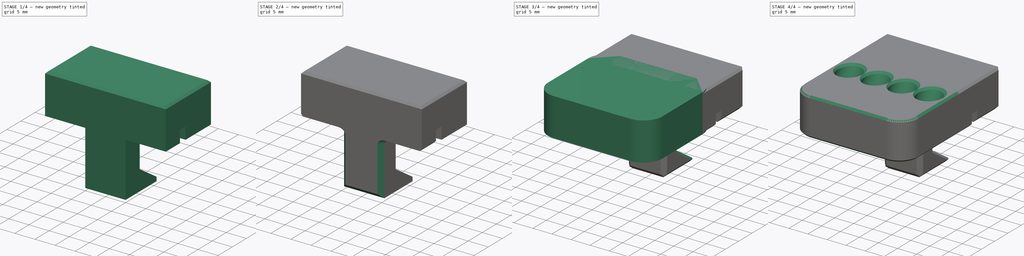
[diagram: build sequence overview — one tinted view per stage of 4, left to right]
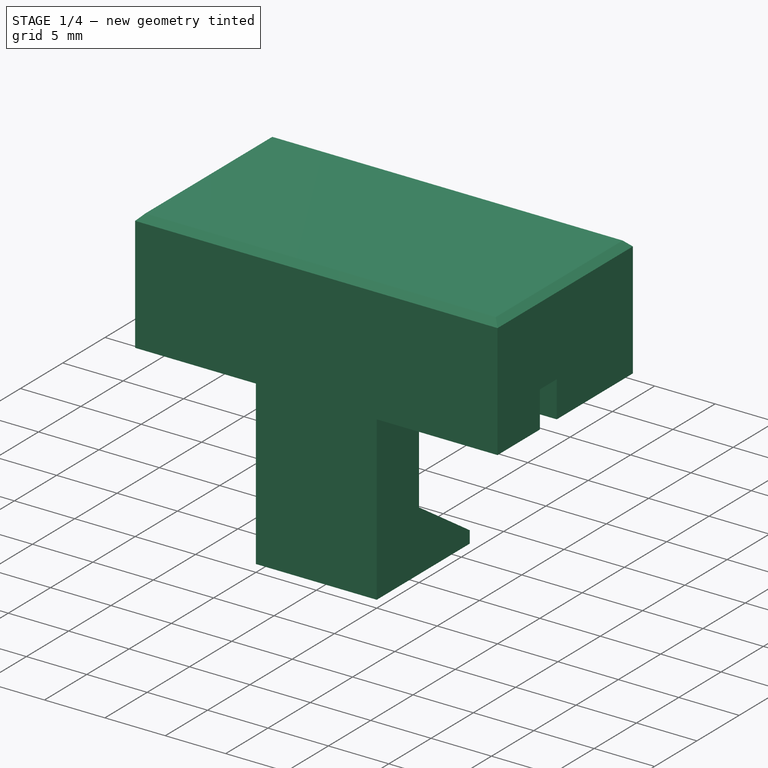
[diagram: stage 1 of 4 — iso view after this stage's code; geometry added in this stage tinted green]
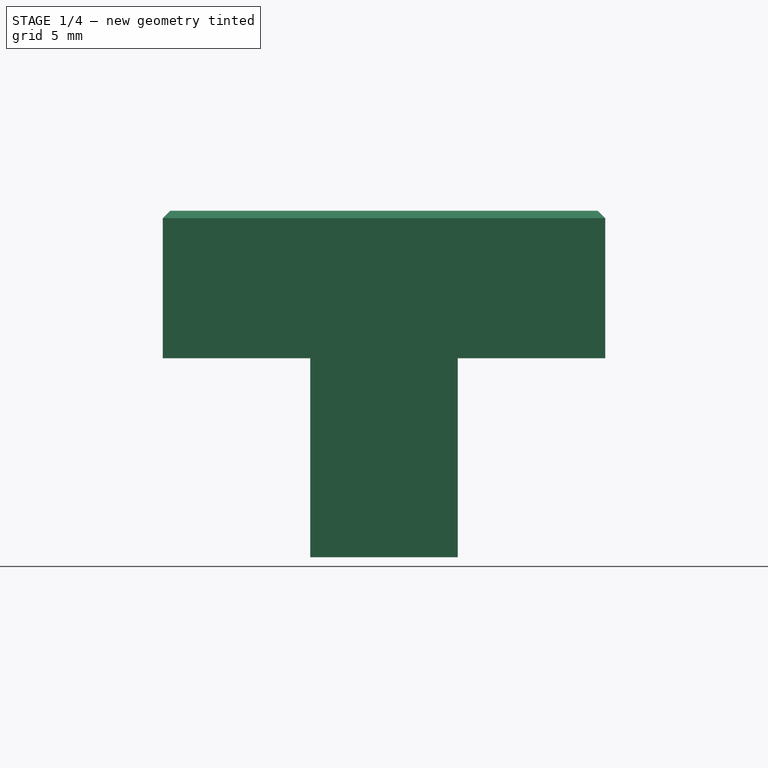
[diagram: stage 1 of 4 — front view after this stage's code; geometry added in this stage tinted green]
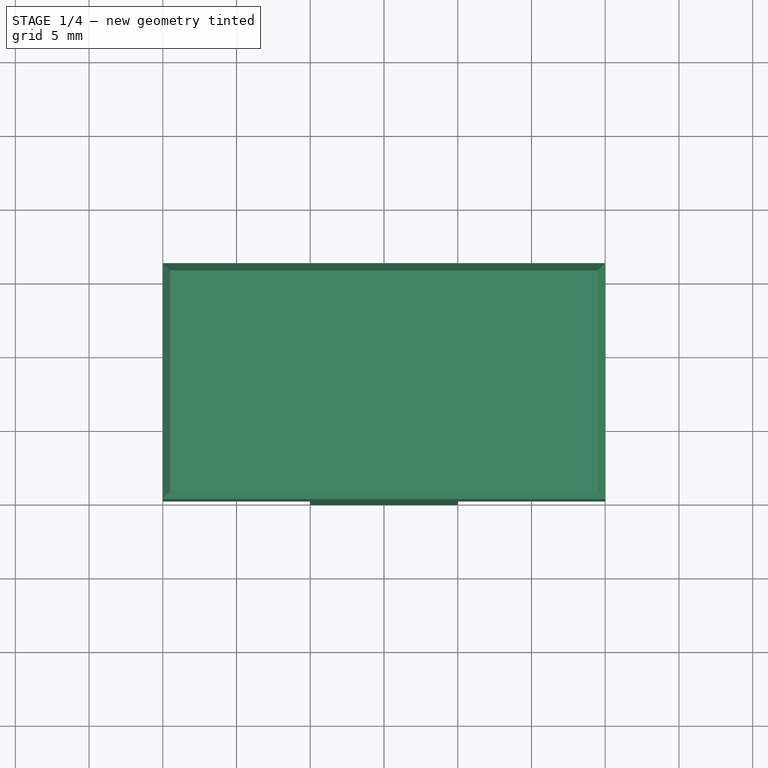
[diagram: stage 1 of 4 — top view after this stage's code; geometry added in this stage tinted green]
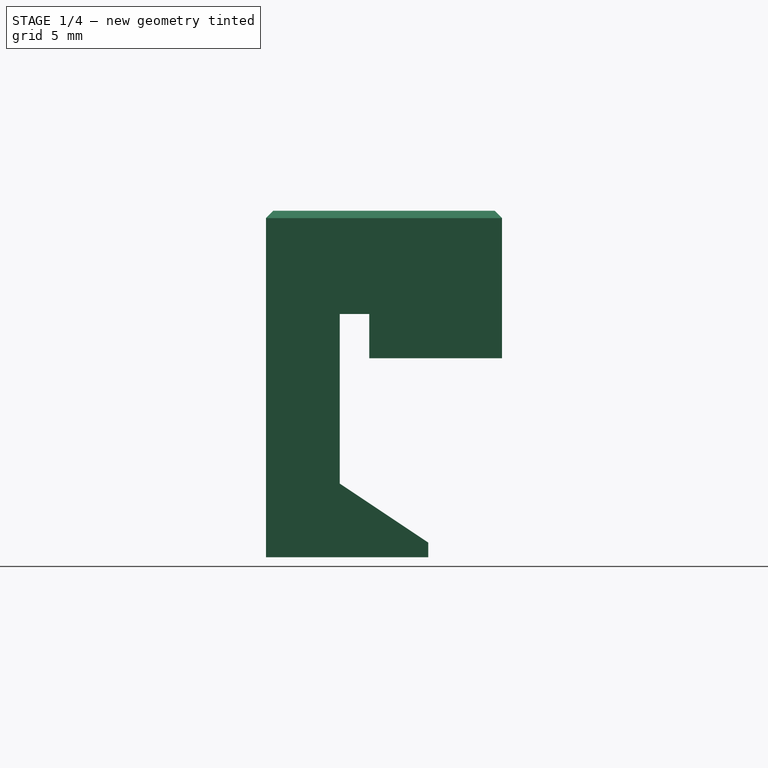
[diagram: stage 1 of 4 — right view after this stage's code; geometry added in this stage tinted green]
FCSTD DOCUMENT  (FreeCAD 0.20R)
Label: tubes_holder
License: All rights reserved
LicenseURL: http://en.wikipedia.org/wiki/All_rights_reserved
objects: PartDesign::Chamfer×7, Sketcher::SketchObject×4, PartDesign::Pad×3, PartDesign::Plane×2, PartDesign::Body×2, PartDesign::Fillet×1, PartDesign::Pocket×1, Part::FeaturePython×1, Part::Feature×1
note: 34 computed .brp shape members not serialized (recipe doc carries the construction recipe); baked Part::Feature solids carry a one-line shape summary decoded from their .brp

FEATURE [Sketcher::SketchObject] Sketch003
  FullyConstrained = true
  MapMode = 5
  Placement = pos=(0,0,0) rot=(0.57735,0.57735,0.57735;2.0944rad)
  Support = -> [YZ_Plane001]
  sketch-geometry (10):
    g0: LineSegment StartX=2 StartY=-5 StartZ=0 EndX=11 EndY=-5 EndZ=0
    g1: LineSegment StartX=11 StartY=-5 StartZ=0 EndX=11 EndY=5 EndZ=0
    g2: LineSegment StartX=2 StartY=-2 StartZ=0 EndX=2 EndY=-5 EndZ=0
    g3: LineSegment StartX=0 StartY=-2 StartZ=0 EndX=2 EndY=-2 EndZ=0
    g4: LineSegment StartX=0 StartY=-2 StartZ=0 EndX=0 EndY=-13.5 EndZ=0
    g5: LineSegment StartX=6 StartY=-18.5 StartZ=0 EndX=6 EndY=-17.5 EndZ=0
    g6: LineSegment StartX=-5 StartY=-18.5 StartZ=0 EndX=6 EndY=-18.5 EndZ=0
    g7: LineSegment StartX=-5 StartY=5 StartZ=0 EndX=11 EndY=5 EndZ=0
    g8: LineSegment StartX=-5 StartY=5 StartZ=0 EndX=-5 EndY=-18.5 EndZ=0
    g9: LineSegment StartX=6 StartY=-17.5 StartZ=0 EndX=0 EndY=-13.5 EndZ=0
  constraints (30):
    c: Coincident(g0,g1)
    c: Coincident(g2,g0)
    c: Horizontal(g0)
    c: Vertical(g1)
    c: Vertical(g2)
    c: Horizontal(g3)
    c: Vertical(g4)
    c: Coincident(g2,g3)
    c: DistanceX(g3,g2) = 2
    c: Coincident(g3,g4)
    c: DistanceY(g2,g2) = 3
    c: Vertical(g5)
    c: DistanceX(g3,g5) = 6
    c: DistanceY(g4,g3) = 11.5
    c: Coincident(g6,g5)
    c: Horizontal(g6)
    c: DistanceY(g1,g1) = 10
    c: Coincident(g7,g1)
    c: Horizontal(g7)
    c: DistanceY(g5,g5) = 1
    c: DistanceX(g6,g4) = 5
    c: DistanceX(g3,g0) = 11
    c: Coincident(g8,g7)
    c: Coincident(g8,g6)
    c: Vertical(g8)
    c: DistanceY(g-1,g7) = 5
    c: DistanceX(g-1,g3) = 0
    c: DistanceY(g6,g4) = 5
    c: Coincident(g9,g5)
    c: Coincident(g9,g4)
FEATURE [Sketcher::SketchObject] Sketch004
  FullyConstrained = false
  MapMode = 5
  Placement = pos=(0,0,0) rot=(0.57735,0.57735,0.57735;2.0944rad)
  sketch-geometry (9):
    g0: LineSegment StartX=2 StartY=-5 StartZ=0 EndX=11 EndY=-5 EndZ=0
    g1: LineSegment StartX=11 StartY=-5 StartZ=0 EndX=11 EndY=5 EndZ=0
    g2: LineSegment StartX=2 StartY=-2 StartZ=0 EndX=2 EndY=-5 EndZ=0
    g3: LineSegment StartX=0 StartY=-2 StartZ=0 EndX=2 EndY=-2 EndZ=0
    g4: LineSegment StartX=-5 StartY=5 StartZ=0 EndX=11 EndY=5 EndZ=0
    g5: LineSegment StartX=-5 StartY=5 StartZ=0 EndX=-5 EndY=-2 EndZ=0
    g6: LineSegment StartX=-5 StartY=-2 StartZ=0 EndX=-5 EndY=-5 EndZ=0
    g7: LineSegment StartX=-5 StartY=-5 StartZ=0 EndX=0 EndY=-5 EndZ=0
    g8: LineSegment StartX=0 StartY=-5 StartZ=0 EndX=0 EndY=-2 EndZ=0
  constraints (26):
    c: Coincident(g0,g1)
    c: Coincident(g2,g0)
    c: Horizontal(g0)
    c: Vertical(g1)
    c: Vertical(g2)
    c: Horizontal(g3)
    c: Coincident(g2,g3)
    c: DistanceX(g3,g2) = 2
    c: DistanceY(g2,g2) = 3
    c: DistanceY(g1,g1) = 10
    c: Coincident(g4,g1)
    c: Horizontal(g4)
    c: DistanceX(g3,g0) = 11
    c: DistanceY(g-1,g4) = 5
    c: DistanceX(g-1,g3) = 0
    c: Coincident(g5,g4)
    c: DistanceX(g4) = -5
    c: Perpendicular(g4,g5)
    c: Coincident(g6,g5)
    c: Coincident(g7,g6)
    c: Coincident(g8,g7)
    c: Coincident(g8,g3)
    c: Perpendicular(g8,g3)
    c: Perpendicular(g8,g7)
    c: Perpendicular(g7,g6)
    c: DistanceY(g6,g-1) = 5
FEATURE [PartDesign::Pad] Pad001
  Direction = (1,-2e-16,3e-16)
  Length = 10
  Length2 = 10
  Midplane = true
  Placement = pos=(0,0,0) rot=(0.57735,0.57735,0.57735;2.0944rad)
  Profile = -> Sketch003
  ReferenceAxis = -> Sketch003 [N_Axis]
  Type = 0
FEATURE [PartDesign::Pad] Pad002
  BaseFeature = -> Pad001
  Direction = (1,0,0)
  Length = 30
  Length2 = 10
  Midplane = true
  Placement = pos=(0,0,0) rot=(0.57735,0.57735,0.57735;2.0944rad)
  Profile = -> Sketch004
  ReferenceAxis = -> Sketch004 [N_Axis]
  Type = 0
FEATURE [PartDesign::Chamfer] Chamfer001
  Angle = 45
  Base = -> Pad002 [Face18,Face9,Face19]
  BaseFeature = -> Pad002
  ChamferType = 0
  FlipDirection = false
  Placement = pos=(0,0,0) rot=(0.57735,0.57735,0.57735;2.0944rad)
  Size = 0.5
  Size2 = 1
  SupportTransform = false
  UseAllEdges = false
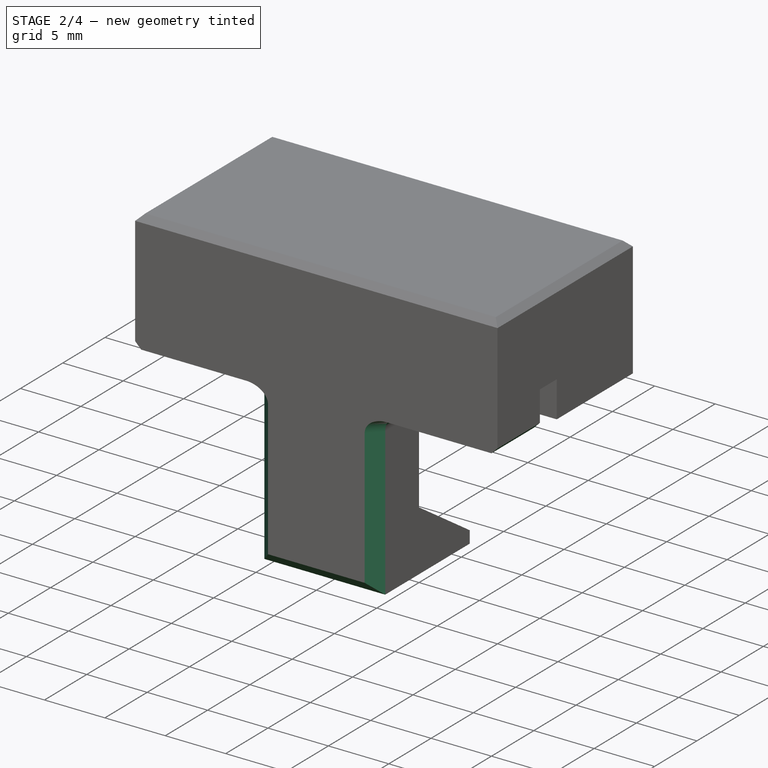
[diagram: stage 2 of 4 — iso view after this stage's code; geometry added in this stage tinted green]
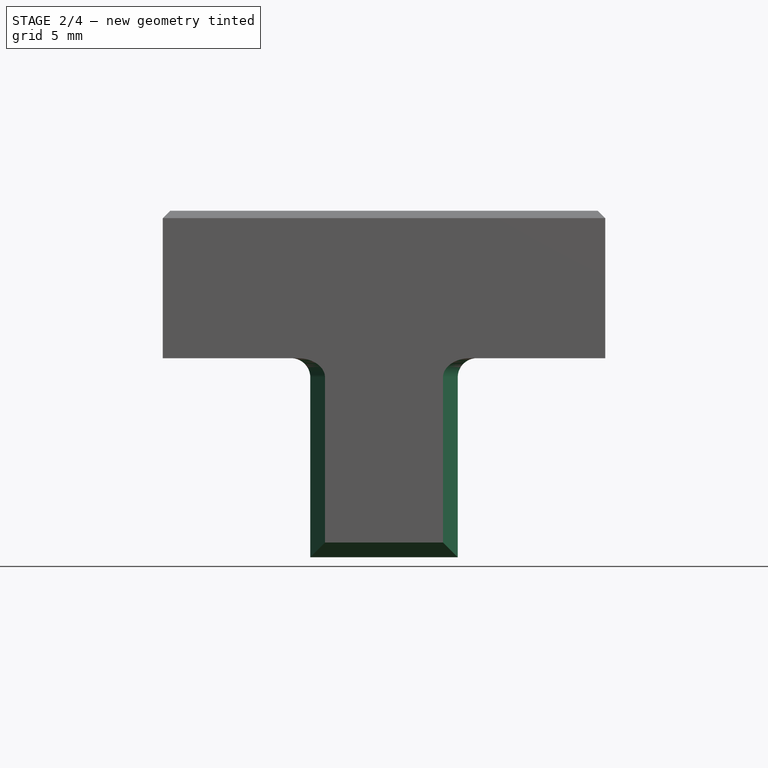
[diagram: stage 2 of 4 — front view after this stage's code; geometry added in this stage tinted green]
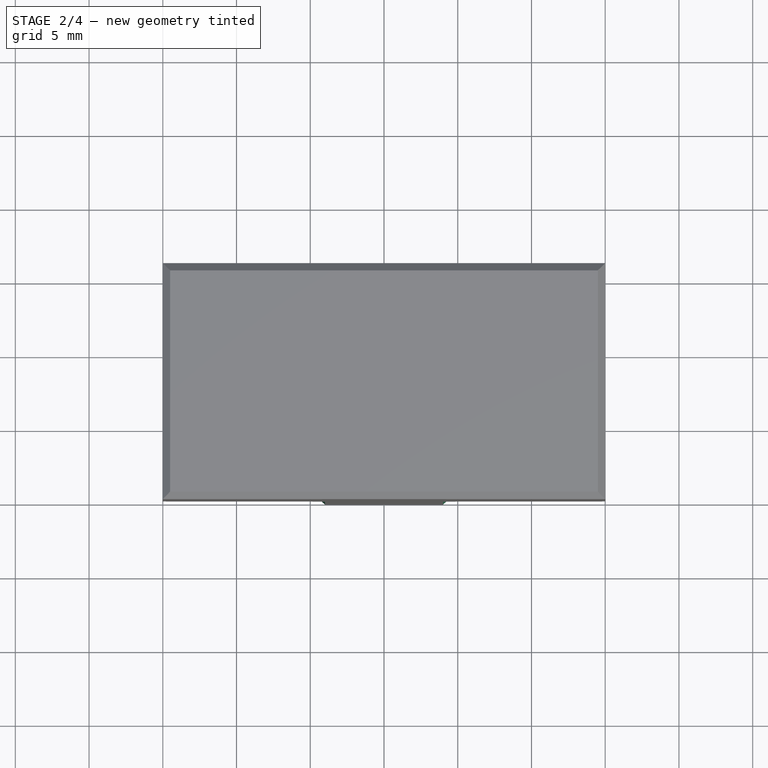
[diagram: stage 2 of 4 — top view after this stage's code; geometry added in this stage tinted green]
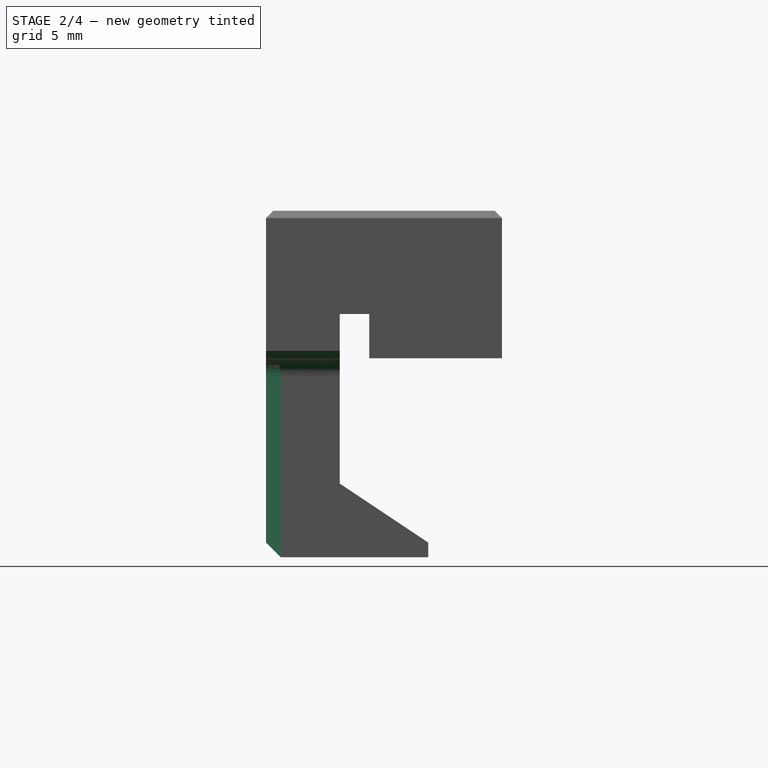
[diagram: stage 2 of 4 — right view after this stage's code; geometry added in this stage tinted green]
FEATURE [PartDesign::Chamfer] Chamfer002
  Angle = 45
  Base = -> Chamfer001 [Edge89,Edge90,Edge83]
  BaseFeature = -> Chamfer001
  ChamferType = 0
  FlipDirection = false
  Placement = pos=(0,0,0) rot=(0.57735,0.57735,0.57735;2.0944rad)
  Size = 1
  Size2 = 1
  SupportTransform = false
  UseAllEdges = false
FEATURE [PartDesign::Fillet] Fillet
  Base = -> Chamfer002 [Edge1,Edge6,Edge43,Edge44]
  BaseFeature = -> Chamfer002
  Placement = pos=(0,0,0) rot=(0.57735,0.57735,0.57735;2.0944rad)
  Radius = 1.3
  SupportTransform = false
  UseAllEdges = false
FEATURE [PartDesign::Chamfer] Chamfer003
  Angle = 45
  Base = -> Fillet [Edge70,Edge2]
  BaseFeature = -> Fillet
  ChamferType = 0
  FlipDirection = false
  Placement = pos=(0,0,0) rot=(0.57735,0.57735,0.57735;2.0944rad)
  Size = 0.5
  Size2 = 1
  SupportTransform = false
  UseAllEdges = false
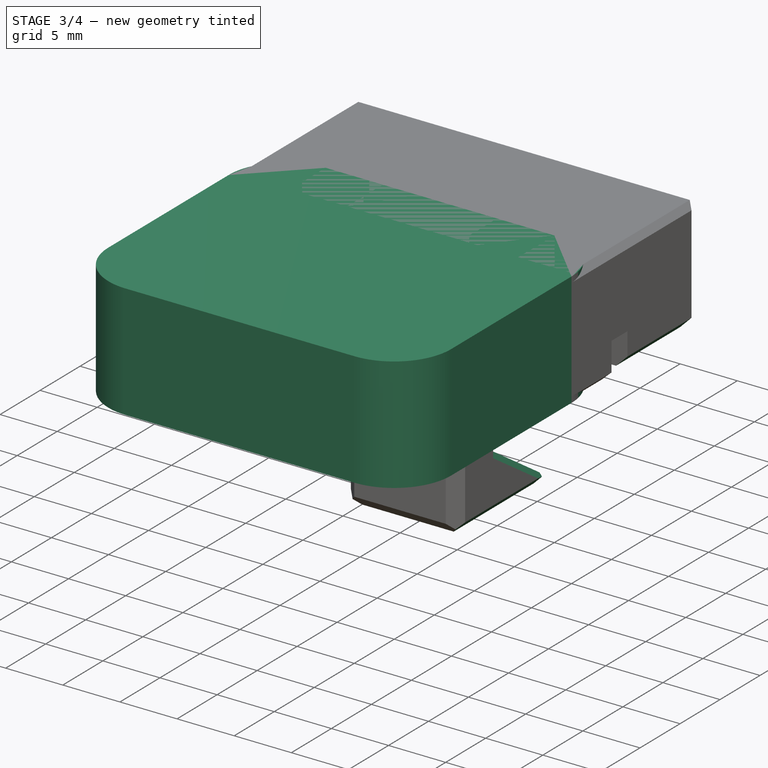
[diagram: stage 3 of 4 — iso view after this stage's code; geometry added in this stage tinted green]
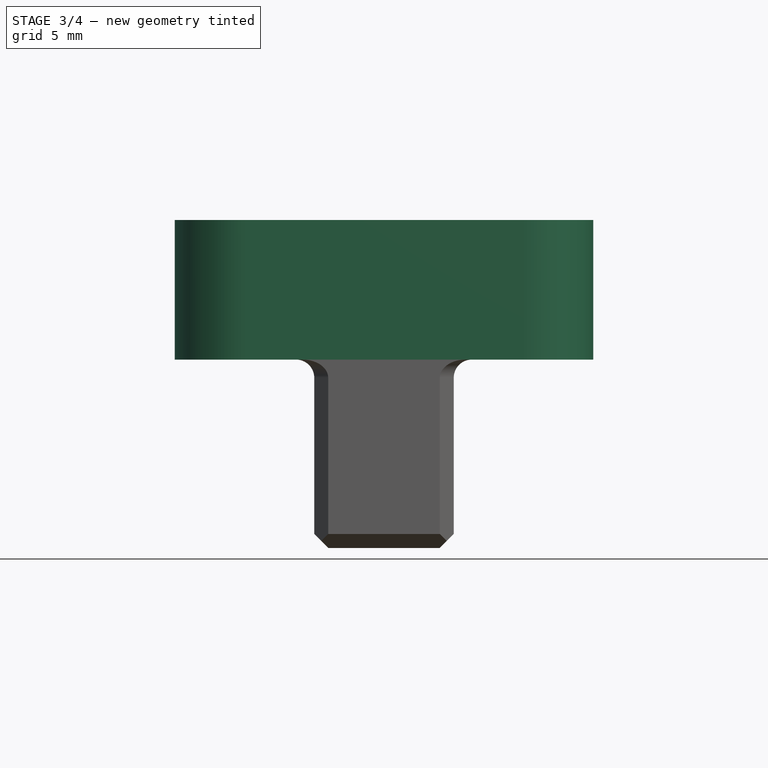
[diagram: stage 3 of 4 — front view after this stage's code; geometry added in this stage tinted green]
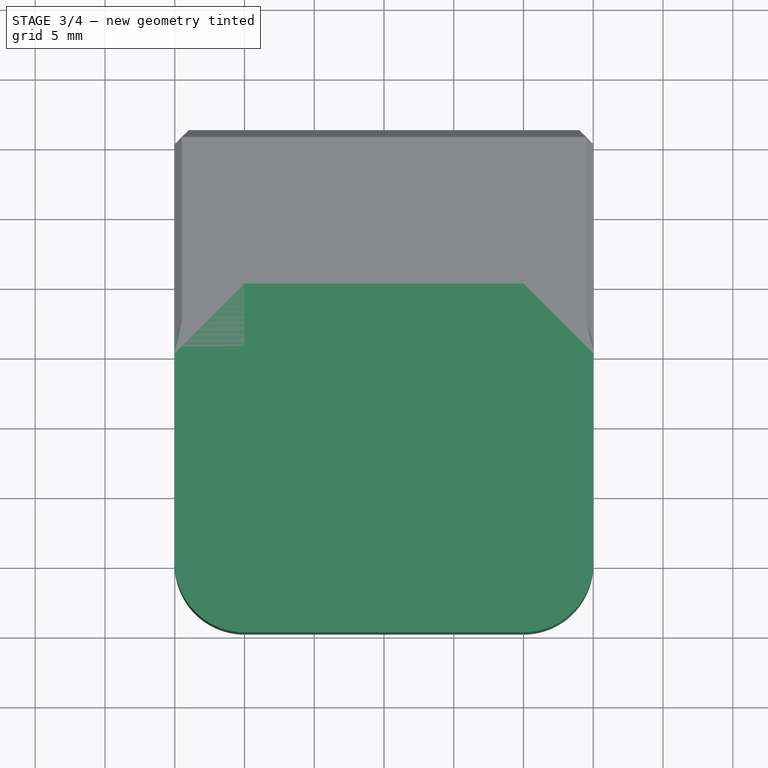
[diagram: stage 3 of 4 — top view after this stage's code; geometry added in this stage tinted green]
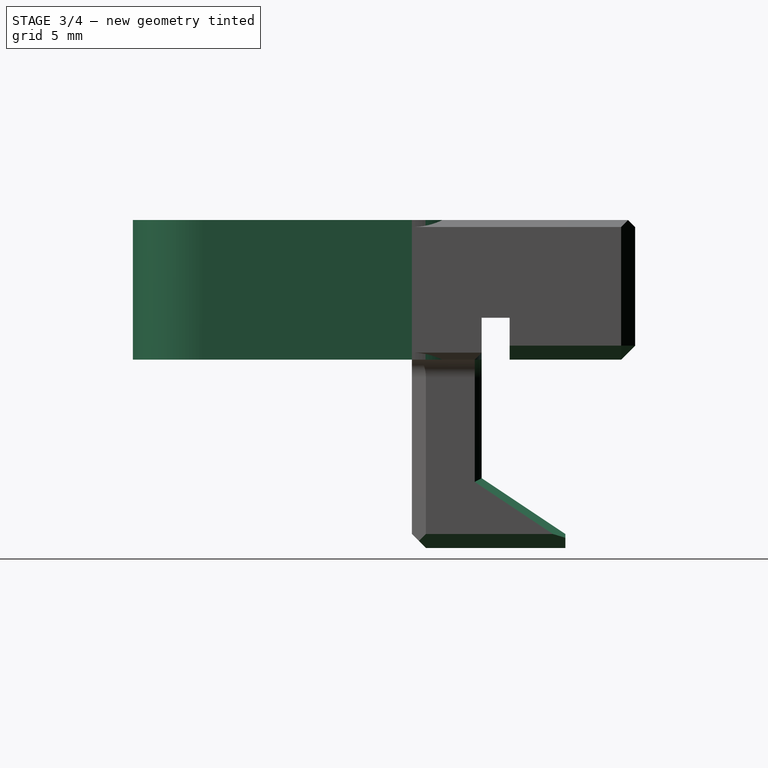
[diagram: stage 3 of 4 — right view after this stage's code; geometry added in this stage tinted green]
FEATURE [Sketcher::SketchObject] Sketch001
  FullyConstrained = true
  MapMode = 5
  Support = -> [XY_Plane]
  sketch-geometry (10):
    g0: ArcOfCircle CenterX=-10 CenterY=-5 CenterZ=0 NormalX=0 NormalY=0 NormalZ=1 AngleXU=0 Radius=5 StartAngle=1.5708 EndAngle=3.14159
    g1: LineSegment StartX=-10 StartY=-1.8e-15 StartZ=0 EndX=10 EndY=-1.8e-15 EndZ=0
    g2: ArcOfCircle CenterX=10 CenterY=-5 CenterZ=0 NormalX=0 NormalY=0 NormalZ=1 AngleXU=0 Radius=5 StartAngle=2e-16 EndAngle=1.5708
    g3: LineSegment StartX=15 StartY=-5 StartZ=0 EndX=15 EndY=-20 EndZ=0
    g4: ArcOfCircle CenterX=10 CenterY=-20 CenterZ=0 NormalX=0 NormalY=0 NormalZ=1 AngleXU=0 Radius=5 StartAngle=4.71239 EndAngle=6.28319
    g5: LineSegment StartX=10 StartY=-25 StartZ=0 EndX=-10 EndY=-25 EndZ=0
    g6: ArcOfCircle CenterX=-10 CenterY=-20 CenterZ=0 NormalX=0 NormalY=0 NormalZ=1 AngleXU=0 Radius=5 StartAngle=3.14159 EndAngle=4.71239
    g7: LineSegment StartX=-15 StartY=-20 StartZ=0 EndX=-15 EndY=-5 EndZ=0
    g8: GeomPoint X=-15 Y=0 Z=0
    g9: GeomPoint X=15 Y=-25 Z=0
  constraints (23):
    c: Tangent(g0,g1) = 1.5708
    c: Tangent(g1,g2) = 1.5708
    c: Tangent(g2,g3) = 1.5708
    c: Tangent(g3,g4) = 1.5708
    c: Tangent(g4,g5) = 1.5708
    c: Tangent(g5,g6) = 1.5708
    c: Tangent(g6,g7) = 1.5708
    c: Tangent(g7,g0) = 1.5708
    c: Horizontal(g1)
    c: Horizontal(g5)
    c: Vertical(g3)
    c: Vertical(g7)
    c: Equal(g0,g2)
    c: Equal(g2,g4)
    c: Equal(g4,g6)
    c: PointOnObject(g8,g1)
    c: PointOnObject(g8,g7)
    c: PointOnObject(g9,g3)
    c: PointOnObject(g9,g5)
    c: Symmetric(g0,g1,g-1)
    c: DistanceX(g0,g-1) = 15
    c: Radius(g6) = 5
    c: DistanceY(g4,g1) = 25
FEATURE [PartDesign::Pad] Pad
  Direction = (0,0,1)
  Length = 10
  Length2 = 10
  Midplane = true
  Profile = -> Sketch001
  ReferenceAxis = -> Sketch001 [N_Axis]
  Type = 0
FEATURE [PartDesign::Body] Body
  Group = -> [Sketch001,Pad,DatumPlane001,Sketch,Pocket,Chamfer]
  Origin = -> Origin
  Tip = -> Chamfer
FEATURE [PartDesign::Plane] DatumPlane
  Length = 60
  MapMode = 2
  ResizeMode = 0
  Support = -> [Body]
  Width = 60
FEATURE [PartDesign::Chamfer] Chamfer004
  Angle = 45
  Base = -> Chamfer003 [Edge96,Edge115,Edge103,Edge70,Edge31,Edge98,Edge33]
  BaseFeature = -> Chamfer003
  ChamferType = 0
  FlipDirection = false
  Placement = pos=(0,0,0) rot=(0.57735,0.57735,0.57735;2.0944rad)
  Size = 1
  Size2 = 1
  SupportTransform = false
  UseAllEdges = false
FEATURE [PartDesign::Chamfer] Chamfer005
  Angle = 45
  Base = -> Chamfer004 [Edge117,Edge109]
  BaseFeature = -> Chamfer004
  ChamferType = 0
  FlipDirection = false
  Placement = pos=(0,0,0) rot=(0.57735,0.57735,0.57735;2.0944rad)
  Size = 1
  Size2 = 1
  SupportTransform = false
  UseAllEdges = false
FEATURE [PartDesign::Chamfer] Chamfer006
  Angle = 45
  Base = -> Chamfer005 [Edge9,Edge32,Edge8,Edge31]
  BaseFeature = -> Chamfer005
  ChamferType = 0
  FlipDirection = false
  Placement = pos=(0,0,0) rot=(0.57735,0.57735,0.57735;2.0944rad)
  Size = 0.5
  Size2 = 1
  SupportTransform = false
  UseAllEdges = false
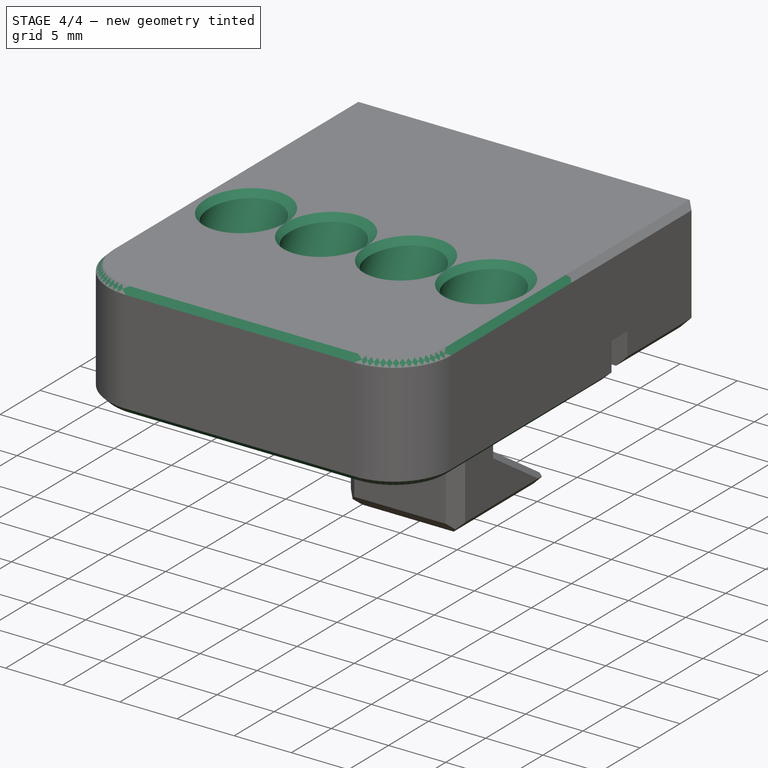
[diagram: stage 4 of 4 — iso view after this stage's code; geometry added in this stage tinted green]
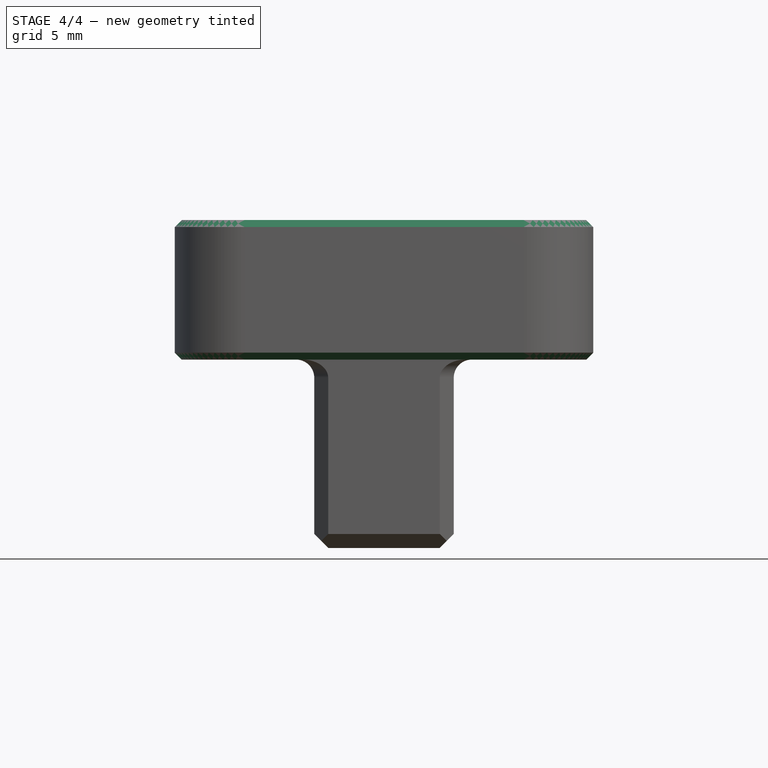
[diagram: stage 4 of 4 — front view after this stage's code; geometry added in this stage tinted green]
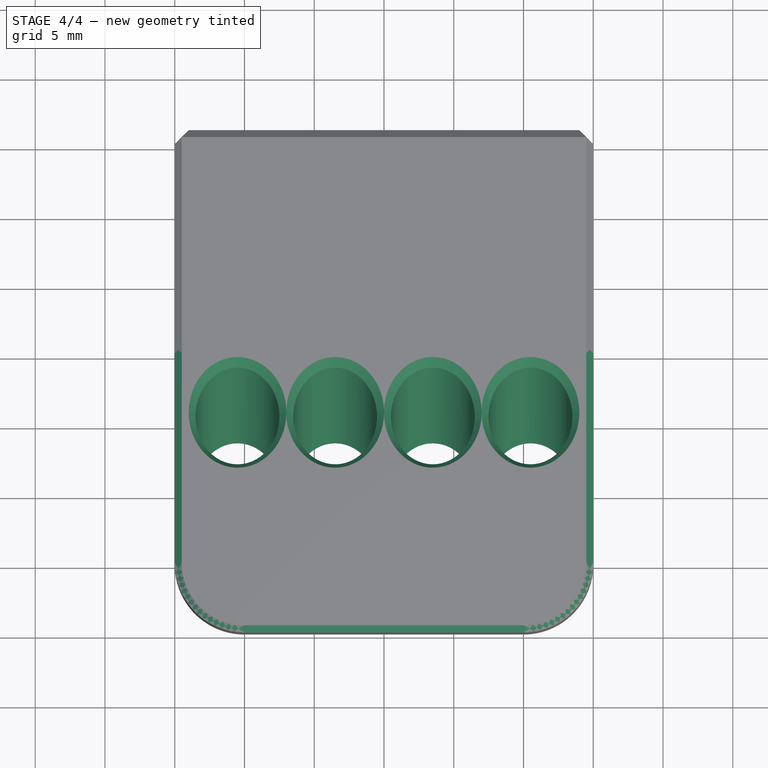
[diagram: stage 4 of 4 — top view after this stage's code; geometry added in this stage tinted green]
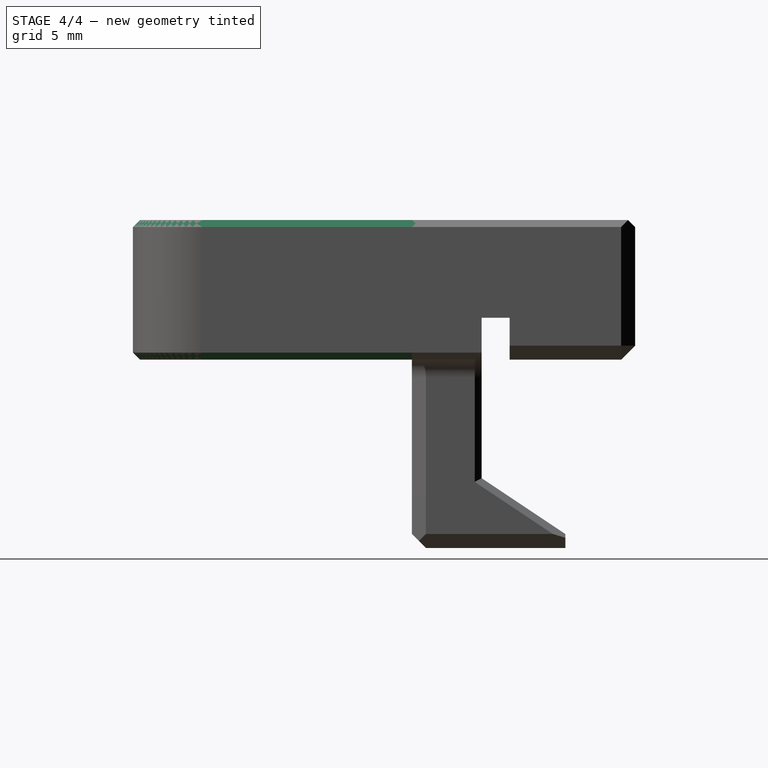
[diagram: stage 4 of 4 — right view after this stage's code; geometry added in this stage tinted green]
FEATURE [PartDesign::Plane] DatumPlane001
  AttachmentOffset = pos=(0,0,0) rot=(-1,0,0;0.523599rad)
  Length = 61.6877
  MapMode = 5
  Placement = pos=(0,0,5) rot=(-1,0,0;0.523599rad)
  ResizeMode = 0
  Support = -> [Pad]
  Width = 79.989
FEATURE [Sketcher::SketchObject] Sketch
  FullyConstrained = true
  MapMode = 5
  Placement = pos=(0,0,5) rot=(-1,0,0;0.523599rad)
  Support = -> [DatumPlane001]
  sketch-geometry (5):
    g0: Circle CenterX=-3.5 CenterY=-8 CenterZ=0 NormalX=0 NormalY=0 NormalZ=1 AngleXU=0 Radius=3
    g1: Circle CenterX=3.5 CenterY=-8 CenterZ=0 NormalX=0 NormalY=0 NormalZ=1 AngleXU=0 Radius=3
    g2: GeomPoint X=0 Y=-8 Z=0
    g3: Circle CenterX=-10.5 CenterY=-8 CenterZ=0 NormalX=0 NormalY=0 NormalZ=1 AngleXU=0 Radius=3
    g4: Circle CenterX=10.5 CenterY=-8 CenterZ=0 NormalX=0 NormalY=0 NormalZ=1 AngleXU=0 Radius=3
  constraints (13):
    c: Diameter(g0) = 6
    c: Equal(g0,g1) = 5.3
    c: DistanceY(g2,g-1) = 8
    c: DistanceX(g2) = 0
    c: DistanceY(g0,g2) = 0
    c: DistanceX(g0,g1) = 7
    c: Equal(g0,g3) = 5.3
    c: DistanceY(g0,g3) = 0
    c: DistanceX(g1,g4) = 7
    c: DistanceY(g1,g4) = 0
    c: Symmetric(g0,g1,g2)
    c: DistanceX(g3,g0) = 7
    c: Diameter(g4) = 6
FEATURE [PartDesign::Pocket] Pocket
  BaseFeature = -> Pad
  Direction = (0,-0.5,-0.866025)
  Length = 5
  Length2 = 5
  Midplane = true
  Profile = -> Sketch
  ReferenceAxis = -> Sketch [N_Axis]
  Type = 1
FEATURE [PartDesign::Chamfer] Chamfer
  Angle = 45
  Base = -> Pocket [Face5,Face4]
  BaseFeature = -> Pocket
  ChamferType = 0
  FlipDirection = false
  Size = 0.5
  Size2 = 1
  SupportTransform = false
  UseAllEdges = false
FEATURE [PartDesign::Body] Body001
  Group = -> [Sketch003,Sketch004,Pad001,Pad002,Chamfer001,Chamfer002,Fillet,Chamfer003,DatumPlane,Chamfer004,Chamfer005,Chamfer006]
  Origin = -> Origin001
  Tip = -> Chamfer006
FEATURE [Part::FeaturePython] Embed  # WARN: FeaturePython — macro-defined, semantics opaque (R4)
  Base = -> Body
  Tolerance = 0
  Tool = -> Body001
FEATURE [Part::Feature] Embed_solid  label="Embed (Solid)"
  shape: bbox 30 x 36 x 26.08 mm, 97 faces (baked)
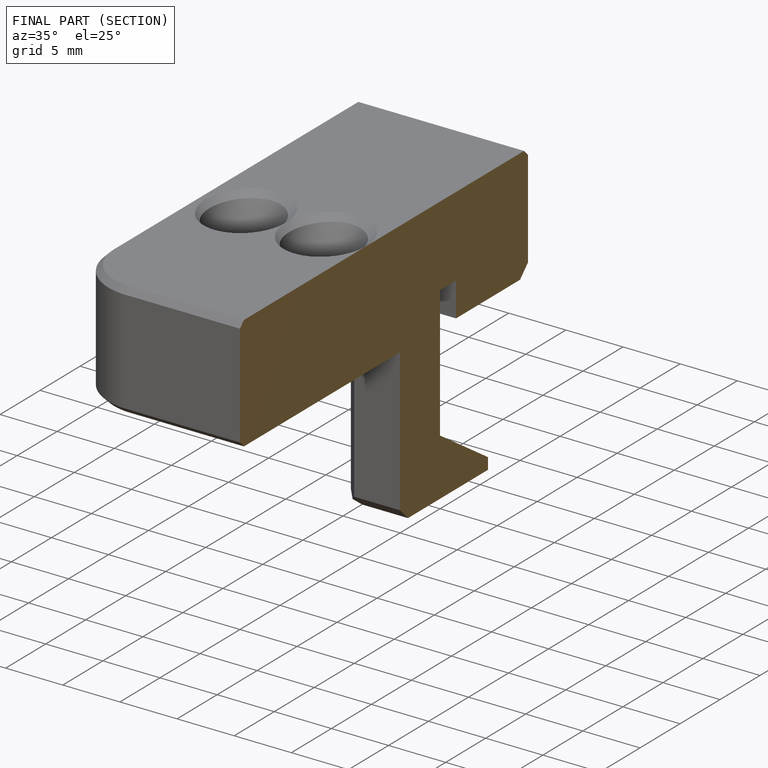
[diagram: finished part — half-section view (interior)]
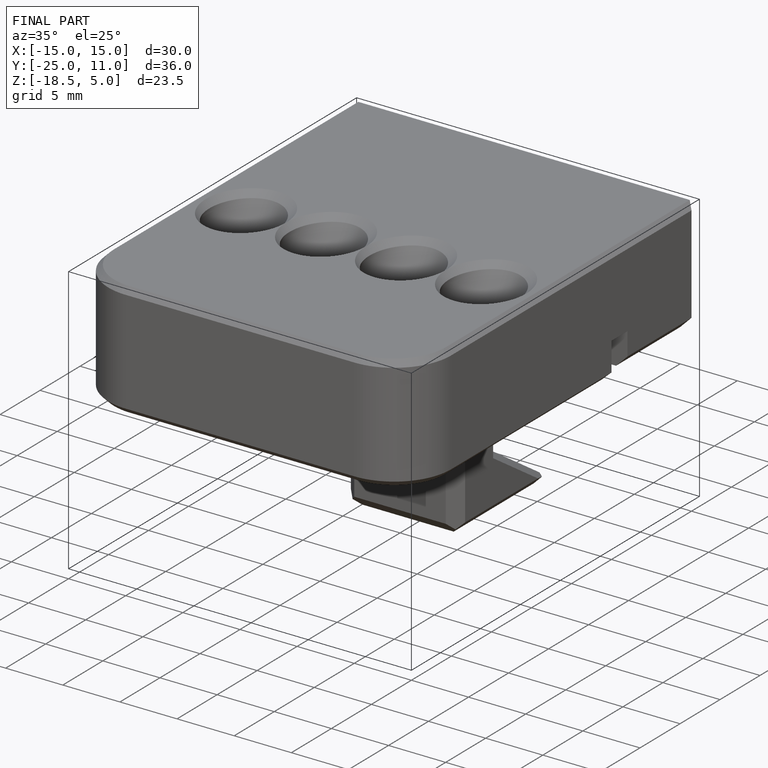
[diagram: finished part — iso view with bounding-box wireframe]
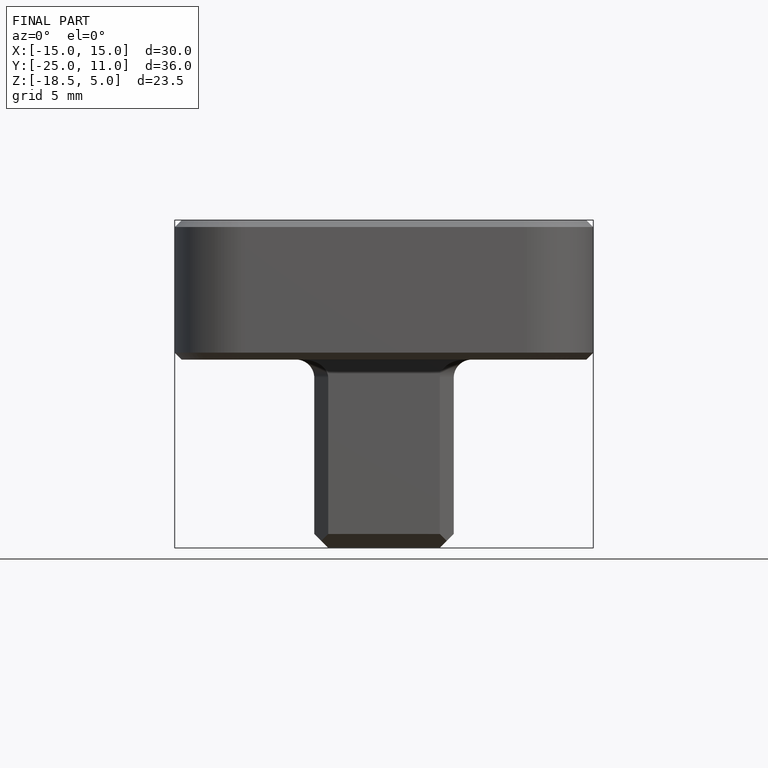
[diagram: finished part — front view with bounding-box wireframe]
